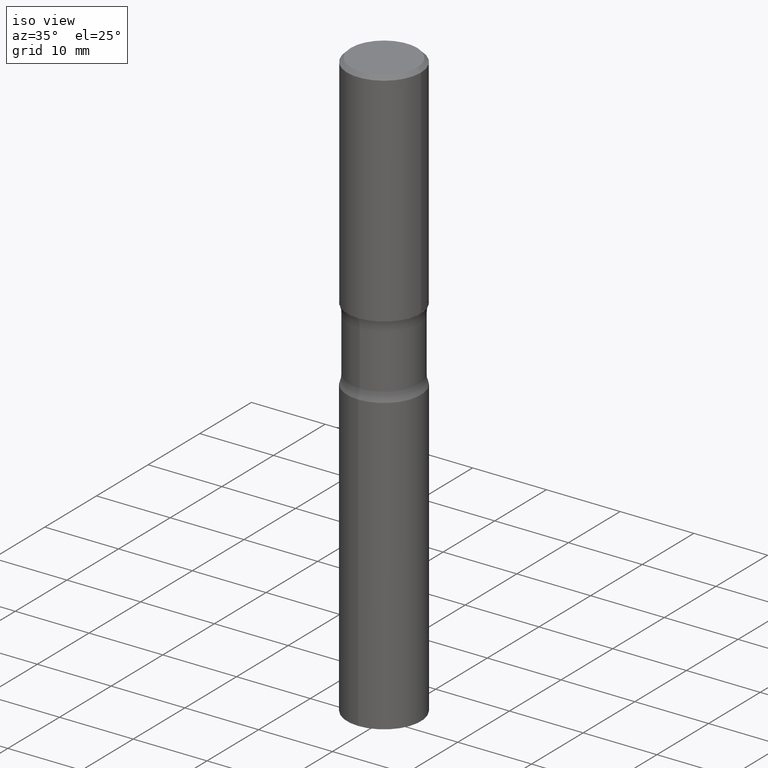
[diagram: clean part render]
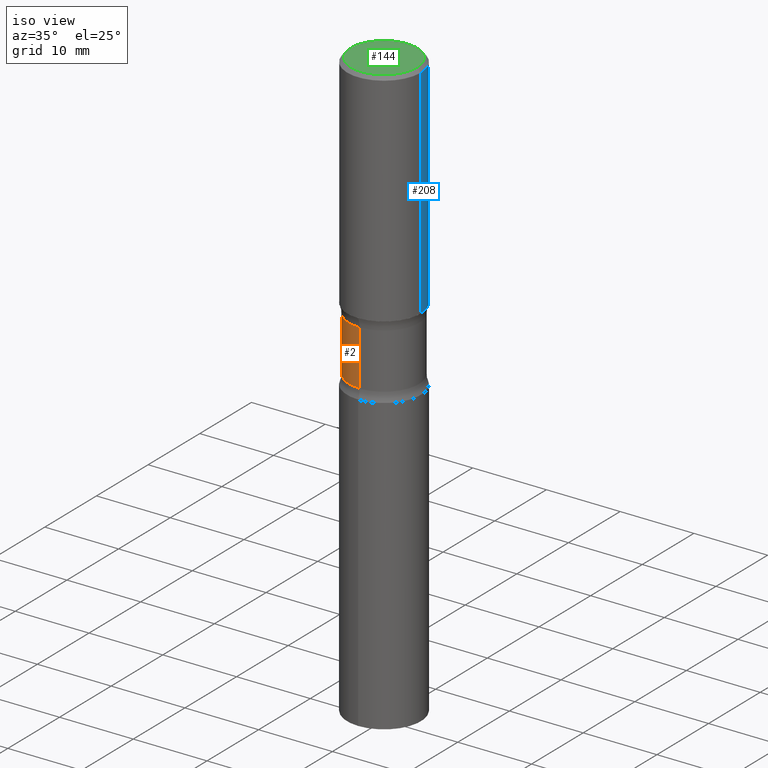
[diagram: same view with three faces highlighted in distinct colors, each labeled with its STEP entity id]
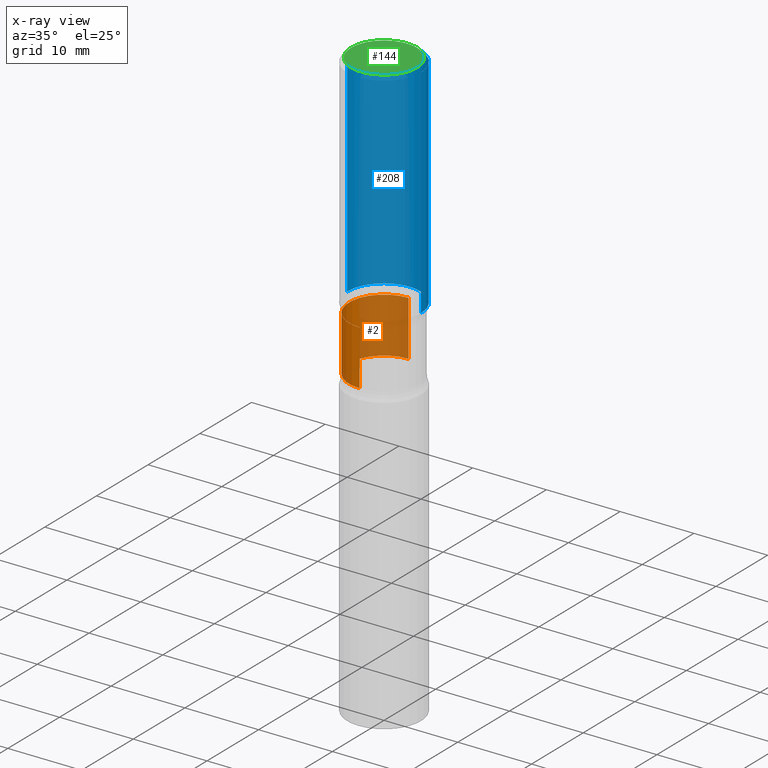
[diagram: x-ray of the same camera — body ghosted, the three highlighted faces saturated]
A machine part, iso view with three faces highlighted in distinct colors.
The next image is the same camera in x-ray (body ghosted, the three faces saturated) — at least one of them is partly hidden behind the body in this view.
Their STEP definitions:

[orange] entity #2 — the highlighted cylindrical surface (partial cylindrical patch) has radius 4.7371 mm, axis along (0, -0, -1).
#2 = ADVANCED_FACE ( 'NONE', ( #333 ), #177, .T. ) ;
#51 = LINE ( 'NONE', #248, #355 ) ;
#57 = ORIENTED_EDGE ( 'NONE', *, *, #361, .T. ) ;
#60 = CARTESIAN_POINT ( 'NONE',  ( 1.302322539388566302E-15, 0.1864999999999891189, -3.149600000000000399 ) ) ;
#67 = EDGE_CURVE ( 'NONE', #423, #302, #264, .T. ) ;
#106 = DIRECTION ( 'NONE',  ( 6.982962677686265922E-15, 1.000000000000000000, -2.929595703661406878E-15 ) ) ;
#118 = AXIS2_PLACEMENT_3D ( 'NONE', #130, #129, #396 ) ;
#120 = CARTESIAN_POINT ( 'NONE',  ( -1.314985953722828706E-15, -0.1865000000000042735, -1.230903388438939983 ) ) ;
#129 = DIRECTION ( 'NONE',  ( 2.475171165693508831E-29, -3.448945869473840543E-15, -1.000000000000000000 ) ) ;
#130 = CARTESIAN_POINT ( 'NONE',  ( 2.998087953510655377E-29, -4.314929469621585971E-15, -1.230903388438940427 ) ) ;
#156 = ORIENTED_EDGE ( 'NONE', *, *, #436, .T. ) ;
#177 = CYLINDRICAL_SURFACE ( 'NONE', #389, 0.1865000000000000546 ) ;
#186 = DIRECTION ( 'NONE',  ( 2.475171165693508831E-29, -3.448945869473840543E-15, -1.000000000000000000 ) ) ;
#189 = ORIENTED_EDGE ( 'NONE', *, *, #491, .F. ) ;
#191 = VERTEX_POINT ( 'NONE', #120 ) ;
#196 = VECTOR ( 'NONE', #494, 39.37007874015748143 ) ;
#206 = CARTESIAN_POINT ( 'NONE',  ( 1.302322539388526465E-15, 0.1864999999999947533, -1.524996611561059812 ) ) ;
#248 = CARTESIAN_POINT ( 'NONE',  ( -1.279482876584313248E-15, -0.1865000000000109626, -3.149599999999999067 ) ) ;
#258 = DIRECTION ( 'NONE',  ( 2.475171165693508831E-29, -3.448945869473840543E-15, -1.000000000000000000 ) ) ;
#264 = CIRCLE ( 'NONE', #324, 0.1865000000000000824 ) ;
#291 = CARTESIAN_POINT ( 'NONE',  ( 3.726019019408391277E-29, -5.329241076748865577E-15, -1.524996611561059146 ) ) ;
#294 = DIRECTION ( 'NONE',  ( 6.982962677686265922E-15, 1.000000000000000000, -2.929595703661407273E-15 ) ) ;
#302 = VERTEX_POINT ( 'NONE', #206 ) ;
#324 = AXIS2_PLACEMENT_3D ( 'NONE', #291, #258, #106 ) ;
#330 = CARTESIAN_POINT ( 'NONE',  ( -1.314985953722820620E-15, -0.1865000000000054114, -1.524996611561058701 ) ) ;
#332 = LINE ( 'NONE', #60, #196 ) ;
#333 = FACE_OUTER_BOUND ( 'NONE', #339, .T. ) ;
#339 = EDGE_LOOP ( 'NONE', ( #189, #57, #156, #370 ) ) ;
#355 = VECTOR ( 'NONE', #449, 39.37007874015748143 ) ;
#357 = CIRCLE ( 'NONE', #118, 0.1864999999999999714 ) ;
#361 = EDGE_CURVE ( 'NONE', #191, #414, #357, .T. ) ;
#367 = CARTESIAN_POINT ( 'NONE',  ( 1.302322539388518576E-15, 0.1864999999999956692, -1.230903388438941093 ) ) ;
#370 = ORIENTED_EDGE ( 'NONE', *, *, #67, .F. ) ;
#389 = AXIS2_PLACEMENT_3D ( 'NONE', #492, #186, #294 ) ;
#396 = DIRECTION ( 'NONE',  ( 6.982962677686265922E-15, 1.000000000000000000, -2.929595703661408850E-15 ) ) ;
#414 = VERTEX_POINT ( 'NONE', #367 ) ;
#423 = VERTEX_POINT ( 'NONE', #330 ) ;
#436 = EDGE_CURVE ( 'NONE', #414, #302, #332, .T. ) ;
#449 = DIRECTION ( 'NONE',  ( 2.475171165693509111E-29, -3.448945869473840543E-15, -1.000000000000000000 ) ) ;
#491 = EDGE_CURVE ( 'NONE', #191, #423, #51, .T. ) ;
#492 = CARTESIAN_POINT ( 'NONE',  ( 7.747190482160426523E-29, -1.093241022283855548E-14, -3.149599999999999511 ) ) ;
#494 = DIRECTION ( 'NONE',  ( 2.475171165693509111E-29, -3.448945869473840543E-15, -1.000000000000000000 ) ) ;

[blue] entity #208 — the highlighted cylindrical surface (partial cylindrical patch) has radius 5 mm, axis along (-0, 0, 1).
#1 = LINE ( 'NONE', #200, #377 ) ;
#14 = CIRCLE ( 'NONE', #417, 0.1968499999999999417 ) ;
#18 = ORIENTED_EDGE ( 'NONE', *, *, #243, .T. ) ;
#26 = ORIENTED_EDGE ( 'NONE', *, *, #273, .F. ) ;
#34 = CYLINDRICAL_SURFACE ( 'NONE', #433, 0.1968499999999999694 ) ;
#95 = ORIENTED_EDGE ( 'NONE', *, *, #164, .F. ) ;
#112 = CARTESIAN_POINT ( 'NONE',  ( 2.888343206985264877E-29, -4.123788609307639024E-15, -1.181099999999999817 ) ) ;
#114 = DIRECTION ( 'NONE',  ( -2.445468806185136597E-29, 3.491481338843145583E-15, 1.000000000000000000 ) ) ;
#122 = CARTESIAN_POINT ( 'NONE',  ( 0.000000000000000000, 0.000000000000000000, 0.000000000000000000 ) ) ;
#127 = DIRECTION ( 'NONE',  ( -2.445468806185136877E-29, 3.491481338843145188E-15, 1.000000000000000000 ) ) ;
#135 = CARTESIAN_POINT ( 'NONE',  ( -0.1968499999999999417, 1.304766576325678113E-15, -0.02000000000000003511 ) ) ;
#164 = EDGE_CURVE ( 'NONE', #297, #448, #14, .T. ) ;
#198 = EDGE_CURVE ( 'NONE', #336, #368, #408, .T. ) ;
#200 = CARTESIAN_POINT ( 'NONE',  ( 0.1968499999999999694, -1.374596203102541411E-15, 9.598753983154298056E-30 ) ) ;
#208 = ADVANCED_FACE ( 'NONE', ( #504 ), #34, .T. ) ;
#243 = EDGE_CURVE ( 'NONE', #368, #448, #437, .T. ) ;
#267 = ORIENTED_EDGE ( 'NONE', *, *, #198, .T. ) ;
#273 = EDGE_CURVE ( 'NONE', #336, #297, #1, .T. ) ;
#282 = CARTESIAN_POINT ( 'NONE',  ( -0.1968499999999999694, 1.398703375343756999E-15, -9.682923725166782276E-30 ) ) ;
#285 = VECTOR ( 'NONE', #127, 39.37007874015748143 ) ;
#297 = VERTEX_POINT ( 'NONE', #352 ) ;
#309 = CARTESIAN_POINT ( 'NONE',  ( 4.890937612370281041E-31, -6.982962677686302702E-17, -0.02000000000000003511 ) ) ;
#320 = CARTESIAN_POINT ( 'NONE',  ( 0.1968500000000000527, -5.498384812410181421E-15, -1.181099999999999817 ) ) ;
#334 = EDGE_LOOP ( 'NONE', ( #267, #18, #95, #26 ) ) ;
#336 = VERTEX_POINT ( 'NONE', #320 ) ;
#352 = CARTESIAN_POINT ( 'NONE',  ( 0.1968499999999999417, -1.420318657638188727E-15, -0.02000000000000003511 ) ) ;
#368 = VERTEX_POINT ( 'NONE', #470 ) ;
#377 = VECTOR ( 'NONE', #482, 39.37007874015748143 ) ;
#387 = DIRECTION ( 'NONE',  ( -2.445468806185136597E-29, 3.491481338843145583E-15, 1.000000000000000000 ) ) ;
#408 = CIRCLE ( 'NONE', #474, 0.1968500000000000527 ) ;
#417 = AXIS2_PLACEMENT_3D ( 'NONE', #309, #114, #421 ) ;
#421 = DIRECTION ( 'NONE',  ( 1.000000000000000000, -6.982962677686266711E-15, 0.000000000000000000 ) ) ;
#430 = DIRECTION ( 'NONE',  ( -2.445468806185136597E-29, 3.491481338843145583E-15, 1.000000000000000000 ) ) ;
#433 = AXIS2_PLACEMENT_3D ( 'NONE', #122, #430, #464 ) ;
#437 = LINE ( 'NONE', #282, #285 ) ;
#448 = VERTEX_POINT ( 'NONE', #135 ) ;
#464 = DIRECTION ( 'NONE',  ( 1.000000000000000000, -6.982962677686266711E-15, 4.876176775795935793E-29 ) ) ;
#467 = DIRECTION ( 'NONE',  ( 1.000000000000000000, -6.982962677686269077E-15, 0.000000000000000000 ) ) ;
#470 = CARTESIAN_POINT ( 'NONE',  ( -0.1968500000000000805, -6.981057426984923875E-16, -1.181099999999999817 ) ) ;
#474 = AXIS2_PLACEMENT_3D ( 'NONE', #112, #387, #467 ) ;
#482 = DIRECTION ( 'NONE',  ( -2.445468806185136877E-29, 3.491481338843145188E-15, 1.000000000000000000 ) ) ;
#504 = FACE_OUTER_BOUND ( 'NONE', #334, .T. ) ;

[green] entity #144 — the highlighted planar face has unit normal (0, -0, -1).
#21 = CIRCLE ( 'NONE', #201, 0.1768499999999999239 ) ;
#49 = DIRECTION ( 'NONE',  ( -2.445468806185136597E-29, 3.491481338843145583E-15, 1.000000000000000000 ) ) ;
#54 = DIRECTION ( 'NONE',  ( 1.000000000000000000, -6.982962677686266711E-15, 4.875932113059880251E-29 ) ) ;
#65 = FACE_OUTER_BOUND ( 'NONE', #462, .T. ) ;
#71 = AXIS2_PLACEMENT_3D ( 'NONE', #365, #49, #54 ) ;
#76 = PLANE ( 'NONE',  #280 ) ;
#94 = ORIENTED_EDGE ( 'NONE', *, *, #497, .T. ) ;
#111 = VERTEX_POINT ( 'NONE', #188 ) ;
#144 = ADVANCED_FACE ( 'NONE', ( #65 ), #76, .F. ) ;
#188 = CARTESIAN_POINT ( 'NONE',  ( -0.1768499999999999239, 1.269851762937246858E-15, 4.268512490091652920E-18 ) ) ;
#192 = CARTESIAN_POINT ( 'NONE',  ( 0.1768499999999999239, -1.316798864272041549E-15, 4.268512490109333727E-18 ) ) ;
#201 = AXIS2_PLACEMENT_3D ( 'NONE', #295, #404, #453 ) ;
#213 = ORIENTED_EDGE ( 'NONE', *, *, #479, .T. ) ;
#216 = VERTEX_POINT ( 'NONE', #192 ) ;
#225 = CARTESIAN_POINT ( 'NONE',  ( 1.234936949548815604E-15, 0.1768499999999999239, -6.153342185293597578E-16 ) ) ;
#280 = AXIS2_PLACEMENT_3D ( 'NONE', #225, #311, #382 ) ;
#295 = CARTESIAN_POINT ( 'NONE',  ( -1.043851414335219820E-46, 1.490343170380447200E-32, 4.268512490100411279E-18 ) ) ;
#308 = CIRCLE ( 'NONE', #71, 0.1768499999999999239 ) ;
#311 = DIRECTION ( 'NONE',  ( 2.438088387897960049E-29, -3.491481338843145188E-15, -1.000000000000000000 ) ) ;
#365 = CARTESIAN_POINT ( 'NONE',  ( -1.043851414335219820E-46, 1.490343170380447200E-32, 4.268512490100411279E-18 ) ) ;
#382 = DIRECTION ( 'NONE',  ( -1.000000000000000000, 6.982962677686265922E-15, -4.876176775795935793E-29 ) ) ;
#404 = DIRECTION ( 'NONE',  ( -2.445468806185136597E-29, 3.491481338843145583E-15, 1.000000000000000000 ) ) ;
#453 = DIRECTION ( 'NONE',  ( 1.000000000000000000, -6.982962677686266711E-15, 4.875932113059880251E-29 ) ) ;
#462 = EDGE_LOOP ( 'NONE', ( #213, #94 ) ) ;
#479 = EDGE_CURVE ( 'NONE', #111, #216, #21, .T. ) ;
#497 = EDGE_CURVE ( 'NONE', #216, #111, #308, .T. ) ;